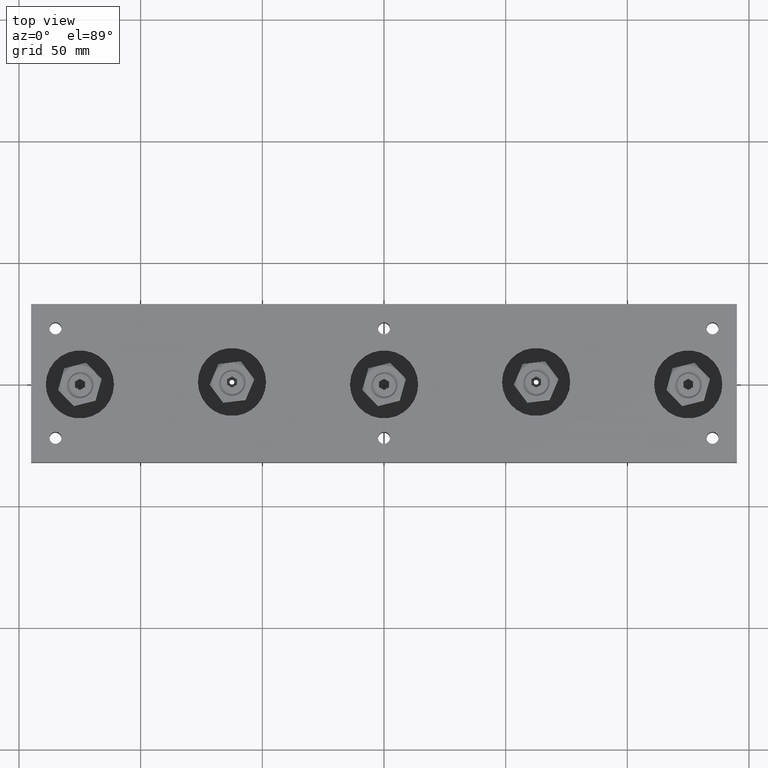
[diagram: clean part render]
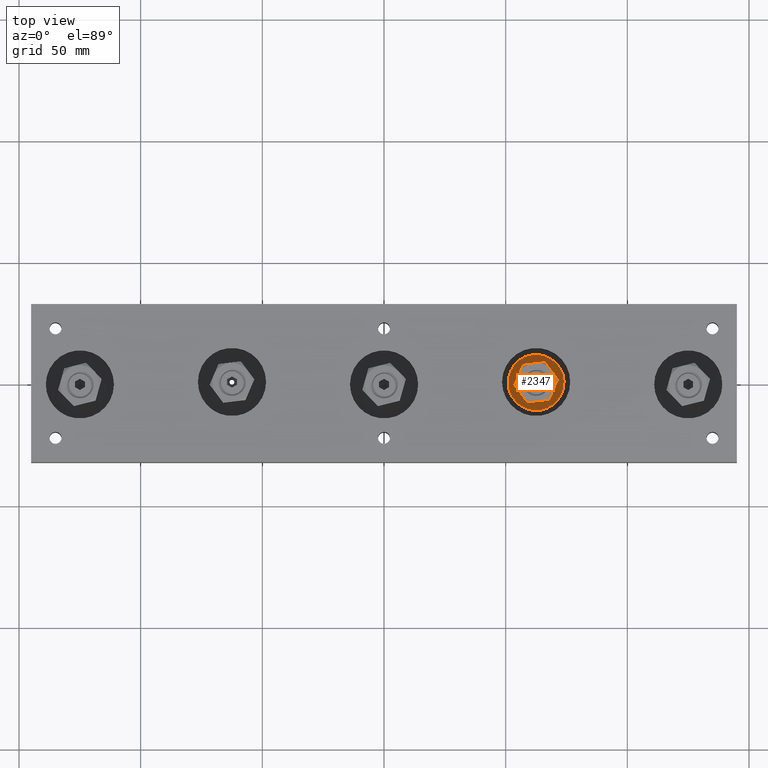
[diagram: same view with one face highlighted and labeled with its STEP entity id]
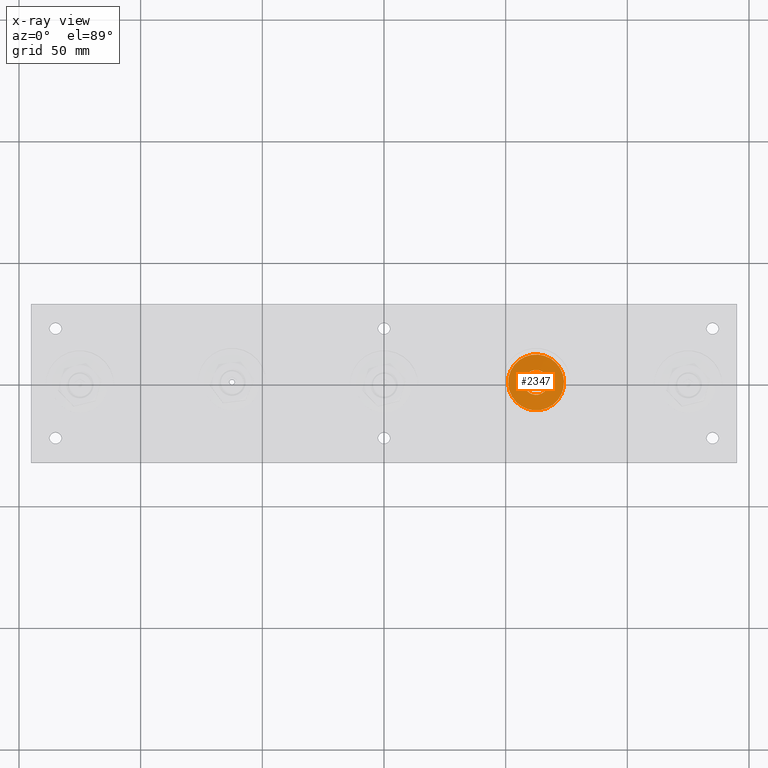
[diagram: x-ray of the same camera — body ghosted, the highlighted face saturated]
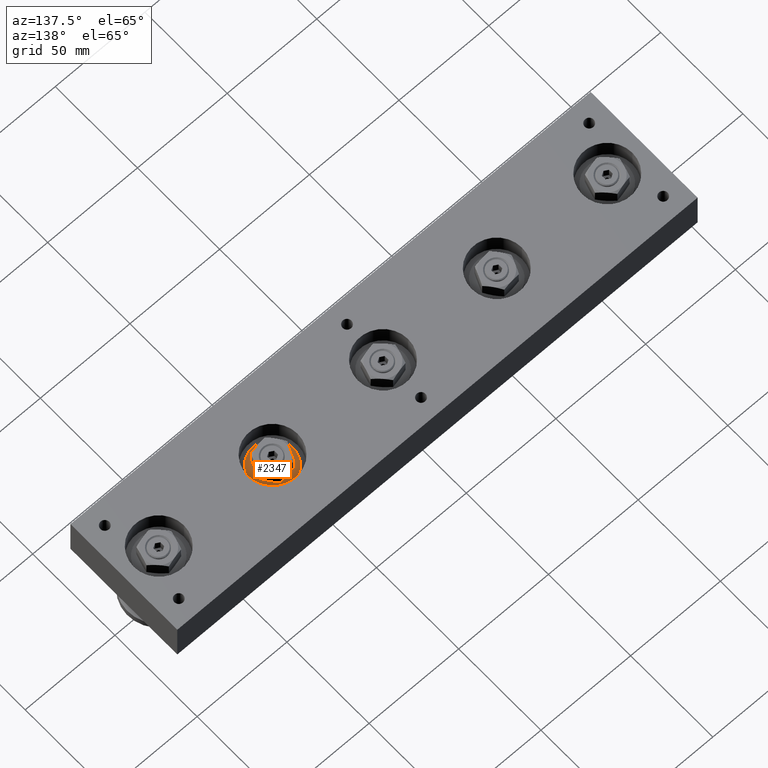
[diagram: same view with one face highlighted and labeled with its STEP entity id]
A machine part, top view. The second image highlights one B-rep face of the part: STEP entity #2347.
The next image is the same camera in x-ray: the body ghosted, the highlighted face saturated — about 0% of this face is hidden behind the body in this view.
A second angle (auxiliary view) of the same face is appended — the face is thin or edge-on in the first view.
In plain terms, the highlighted conical surface has half-angle 83.758 deg.
Its self-contained STEP definition (entity closure, byte-faithful):
#110=CONICAL_SURFACE('',#2800,8.3,1.46185436980503);
#394=FACE_OUTER_BOUND('',#589,.T.);
#589=EDGE_LOOP('',(#1960,#1961,#1962,#1963));
#737=LINE('',#4116,#879);
#879=VECTOR('',#3416,8.3);
#1019=CIRCLE('',#2801,11.5);
#1020=CIRCLE('',#2802,5.1);
#1195=VERTEX_POINT('',#4113);
#1196=VERTEX_POINT('',#4115);
#1459=EDGE_CURVE('',#1195,#1195,#1019,.T.);
#1460=EDGE_CURVE('',#1195,#1196,#737,.T.);
#1461=EDGE_CURVE('',#1196,#1196,#1020,.T.);
#1960=ORIENTED_EDGE('',*,*,#1459,.F.);
#1961=ORIENTED_EDGE('',*,*,#1460,.T.);
#1962=ORIENTED_EDGE('',*,*,#1461,.T.);
#1963=ORIENTED_EDGE('',*,*,#1460,.F.);
#2347=ADVANCED_FACE('',(#394),#110,.T.);
#2800=AXIS2_PLACEMENT_3D('',#4112,#3412,#3413);
#2801=AXIS2_PLACEMENT_3D('',#4114,#3414,#3415);
#2802=AXIS2_PLACEMENT_3D('',#4117,#3417,#3418);
#3412=DIRECTION('center_axis',(0.,-1.,0.));
#3413=DIRECTION('ref_axis',(1.,0.,0.));
#3414=DIRECTION('center_axis',(0.,-1.,0.));
#3415=DIRECTION('ref_axis',(1.,0.,0.));
#3416=DIRECTION('',(0.994071691754376,0.108726591285635,1.21738671542999E-16));
#3417=DIRECTION('center_axis',(0.,-1.,0.));
#3418=DIRECTION('ref_axis',(1.,0.,0.));
#4112=CARTESIAN_POINT('Origin',(0.,1.35,0.));
#4113=CARTESIAN_POINT('',(-11.5,1.,-1.40834381901946E-15));
#4114=CARTESIAN_POINT('Origin',(0.,1.,0.));
#4115=CARTESIAN_POINT('',(-5.1,1.7,-6.2456986756515E-16));
#4116=CARTESIAN_POINT('',(-8.3,1.35,-1.0164568432923E-15));
#4117=CARTESIAN_POINT('Origin',(0.,1.7,0.));